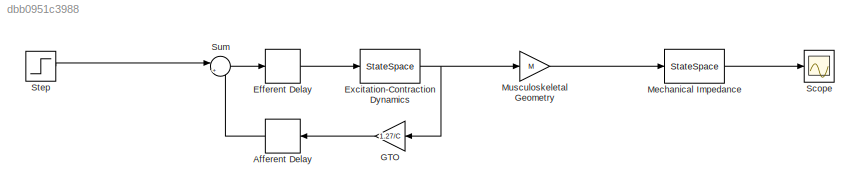
MODEL slx_dbb0951c3988
KIND model
CONFIG AbsTol = auto
CONFIG EnableMultiTasking = off
CONFIG FixedStep = auto
CONFIG MaxStep = auto
CONFIG MinStep = auto
CONFIG RelTol = 1e-3
CONFIG SampleTimeConstraint = Unconstrained
CONFIG SolverName = VariableStepAuto
CONFIG StartTime = 0.0
CONFIG StopTime = 3
WORKSPACE source: mxarray member
WORKSPACE C: Simulink.Parameter (value not decoded)
WORKSPACE D: Simulink.Parameter (value not decoded)
WORKSPACE I: Simulink.Parameter (value not decoded)
WORKSPACE I_inv: Simulink.Parameter (value not decoded)
WORKSPACE K: Simulink.Parameter (value not decoded)
WORKSPACE M: Simulink.Parameter (value not decoded)
WORKSPACE T_1: Simulink.Parameter (value not decoded)
WORKSPACE T_2: Simulink.Parameter (value not decoded)
BLOCK [Delay] Afferent Delay
  DelayLength = 15
  InputPortMap = u0
  Ports = [1, 1]
BLOCK [Delay] Efferent Delay
  DelayLength = 15
  InputPortMap = u0
  Ports = [1, 1]
BLOCK [StateSpace] Excitation-Contraction Dynamics
  A = [0, 1; -1/(T_1*T_2), -(T_1+T_2)/(T_1*T_2)]
  B = [0; C/(T_1*T_2)]
  C = [1, 0]
  D = 0
  InitialCondition = 0
  Ports = [1, 1]
BLOCK [Gain] GTO
  Gain = 1.27/C
BLOCK [StateSpace] Mechanical Impedance
  A = [0, 1; -I_inv*K, -I_inv*D]
  B = [0; I_inv]
  C = [1, 0]
  ContinuousStateAttributes = 'q'
  D = 0
  InitialCondition = 0
  ParameterTunability = Optimized
  Ports = [1, 1]
BLOCK [Gain] Musculoskeletal Geometry
  Gain = M
BLOCK [Scope] Scope
  Floating = off
  NumInputPorts = 1
  Ports = [1]
  ScopeSpecificationString = Simulink.scopes.TimeScopeBlockCfg('CurrentConfiguration', extmgr.ConfigurationSet(extmgr.Configuration('Core','General UI',true),extmgr.Configuration('Core','Source UI',true),extmgr.Configuration('Sources','WiredSimulink',true),extmgr.Configuration('Visuals','Time Domain',true,'SerializedDisplays',{struct('MinYLimReal','-0.19934','MaxYLimReal','1.79408','YLabelReal','','MinYLimMag','0.00000','MaxY...<+1395ch>
BLOCK [Step] Step
  SampleTime = 0.001
BLOCK [Sum] Sum
  Inputs = |+-
  Ports = [2, 1]
LINE Afferent Delay:1 -> Sum:2
LINE Efferent Delay:1 -> Excitation-Contraction Dynamics:1
NET Excitation-Contraction Dynamics:1 -> GTO:1, Musculoskeletal Geometry:1
LINE GTO:1 -> Afferent Delay:1
LINE Mechanical Impedance:1 -> Scope:1
LINE Musculoskeletal Geometry:1 -> Mechanical Impedance:1
LINE Step:1 -> Sum:1
LINE Sum:1 -> Efferent Delay:1
note: NET lines group one-source signal fan-out (src -> all destinations, sorted); 1:1 wires keep LINE
